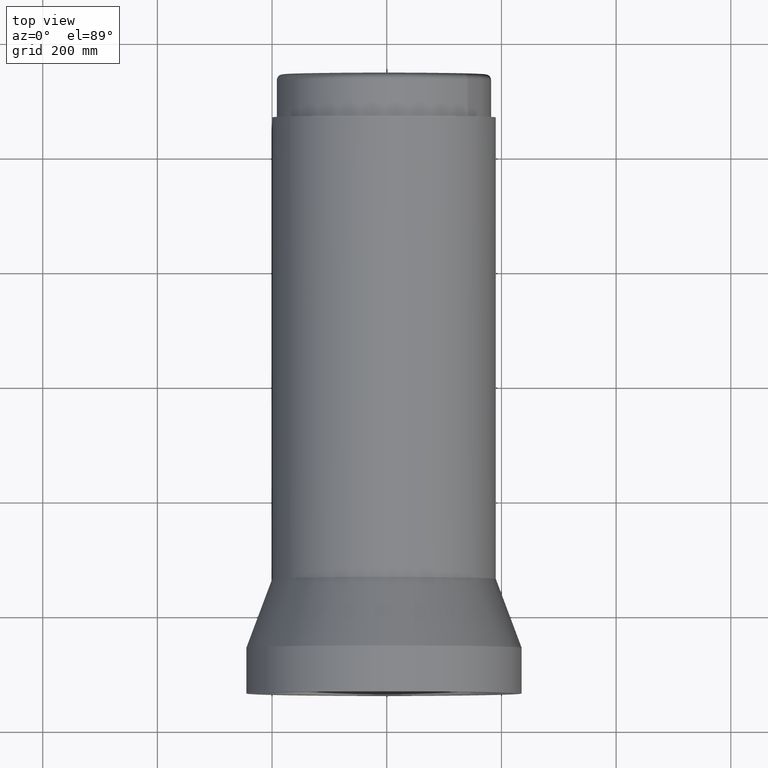
[diagram: clean part render]
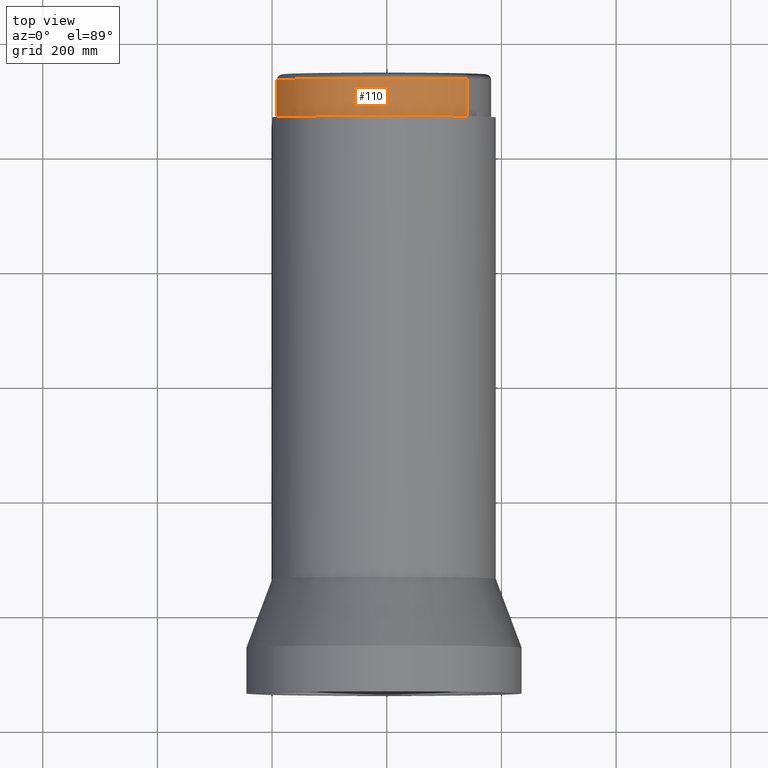
[diagram: same view with one face highlighted and labeled with its STEP entity id]
A machine part, top view. The second image highlights one B-rep face of the part: STEP entity #110.
In plain terms, the highlighted cylindrical surface (partial cylindrical patch) has radius 186.8 mm, axis along (0, -1, 0).
Its self-contained STEP definition (entity closure, byte-faithful):
#110 = ADVANCED_FACE ( 'NONE', ( #21665 ), #11118, .T. ) ;
#452 = VECTOR ( 'NONE', #21444, 1000.000000000000000 ) ;
#867 = ORIENTED_EDGE ( 'NONE', *, *, #16026, .T. ) ;
#1301 = EDGE_LOOP ( 'NONE', ( #23331, #9403, #867, #17710 ) ) ;
#3227 = DIRECTION ( 'NONE',  ( -0.7822983126862212977, 0.6229039652854133635, 0.0000000000000000000 ) ) ;
#4377 = DIRECTION ( 'NONE',  ( -0.7822983126862212977, 0.6229039652854133635, 0.0000000000000000000 ) ) ;
#4609 = CARTESIAN_POINT ( 'NONE',  ( -146.1333248097861599, 116.3584607153152319, 990.0000000000000000 ) ) ;
#5755 = AXIS2_PLACEMENT_3D ( 'NONE', #14573, #23195, #16348 ) ;
#5915 = DIRECTION ( 'NONE',  ( 0.0000000000000000000, 0.0000000000000000000, -1.000000000000000000 ) ) ;
#6429 = CARTESIAN_POINT ( 'NONE',  ( 0.0000000000000000000, 0.0000000000000000000, 925.0000000000000000 ) ) ;
#8273 = EDGE_CURVE ( 'NONE', #10430, #8478, #9607, .T. ) ;
#8478 = VERTEX_POINT ( 'NONE', #18330 ) ;
#9403 = ORIENTED_EDGE ( 'NONE', *, *, #13186, .T. ) ;
#9574 = LINE ( 'NONE', #17261, #10067 ) ;
#9607 = CIRCLE ( 'NONE', #18678, 186.8000000000000398 ) ;
#9692 = DIRECTION ( 'NONE',  ( 0.0000000000000000000, 0.0000000000000000000, -1.000000000000000000 ) ) ;
#10067 = VECTOR ( 'NONE', #9692, 1000.000000000000000 ) ;
#10085 = LINE ( 'NONE', #23096, #452 ) ;
#10430 = VERTEX_POINT ( 'NONE', #11600 ) ;
#11118 = CYLINDRICAL_SURFACE ( 'NONE', #5755, 186.8000000000000398 ) ;
#11600 = CARTESIAN_POINT ( 'NONE',  ( 146.1333248097861599, -116.3584607153151893, 925.0000000000000000 ) ) ;
#12665 = AXIS2_PLACEMENT_3D ( 'NONE', #15121, #5915, #4377 ) ;
#13147 = VERTEX_POINT ( 'NONE', #14877 ) ;
#13186 = EDGE_CURVE ( 'NONE', #13147, #13896, #20206, .T. ) ;
#13896 = VERTEX_POINT ( 'NONE', #4609 ) ;
#14573 = CARTESIAN_POINT ( 'NONE',  ( 0.0000000000000000000, 0.0000000000000000000, 925.0000000000000000 ) ) ;
#14877 = CARTESIAN_POINT ( 'NONE',  ( 146.1333248097861599, -116.3584607153151893, 990.0000000000000000 ) ) ;
#15121 = CARTESIAN_POINT ( 'NONE',  ( 0.0000000000000000000, 0.0000000000000000000, 990.0000000000000000 ) ) ;
#15515 = DIRECTION ( 'NONE',  ( 0.0000000000000000000, 0.0000000000000000000, -1.000000000000000000 ) ) ;
#16026 = EDGE_CURVE ( 'NONE', #13896, #8478, #9574, .T. ) ;
#16348 = DIRECTION ( 'NONE',  ( -0.7822983126862212977, 0.6229039652854133635, 0.0000000000000000000 ) ) ;
#17261 = CARTESIAN_POINT ( 'NONE',  ( -146.1333248097861599, 116.3584607153152319, 925.0000000000000000 ) ) ;
#17710 = ORIENTED_EDGE ( 'NONE', *, *, #8273, .F. ) ;
#18330 = CARTESIAN_POINT ( 'NONE',  ( -146.1333248097861599, 116.3584607153152319, 925.0000000000000000 ) ) ;
#18678 = AXIS2_PLACEMENT_3D ( 'NONE', #6429, #15515, #3227 ) ;
#20206 = CIRCLE ( 'NONE', #12665, 186.8000000000000398 ) ;
#21444 = DIRECTION ( 'NONE',  ( 0.0000000000000000000, 0.0000000000000000000, -1.000000000000000000 ) ) ;
#21665 = FACE_OUTER_BOUND ( 'NONE', #1301, .T. ) ;
#22450 = EDGE_CURVE ( 'NONE', #13147, #10430, #10085, .T. ) ;
#23096 = CARTESIAN_POINT ( 'NONE',  ( 146.1333248097861883, -116.3584607153152035, 925.0000000000000000 ) ) ;
#23195 = DIRECTION ( 'NONE',  ( 0.0000000000000000000, 0.0000000000000000000, -1.000000000000000000 ) ) ;
#23331 = ORIENTED_EDGE ( 'NONE', *, *, #22450, .F. ) ;